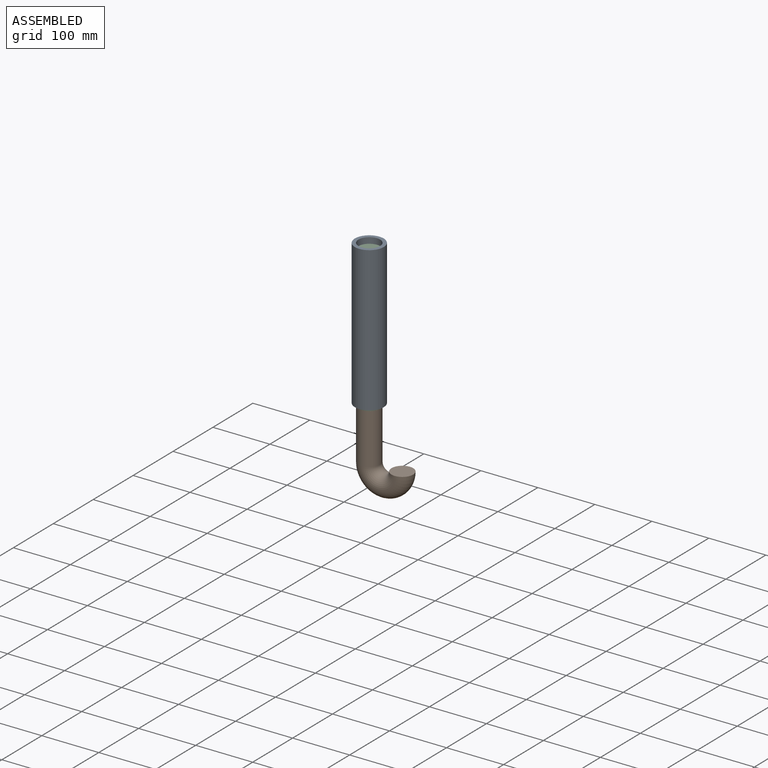
[diagram: assembled view]
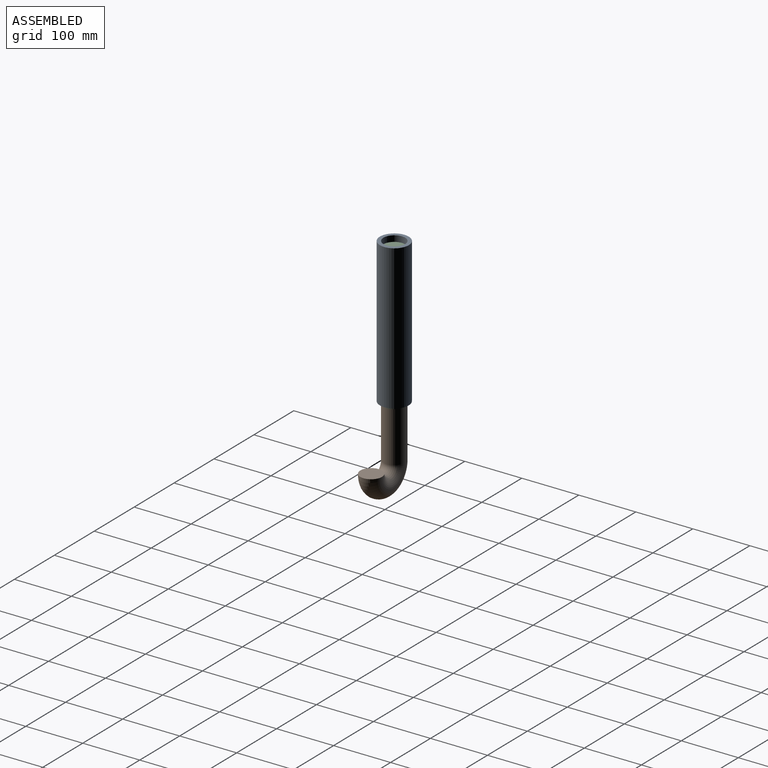
[diagram: assembled view, second angle]
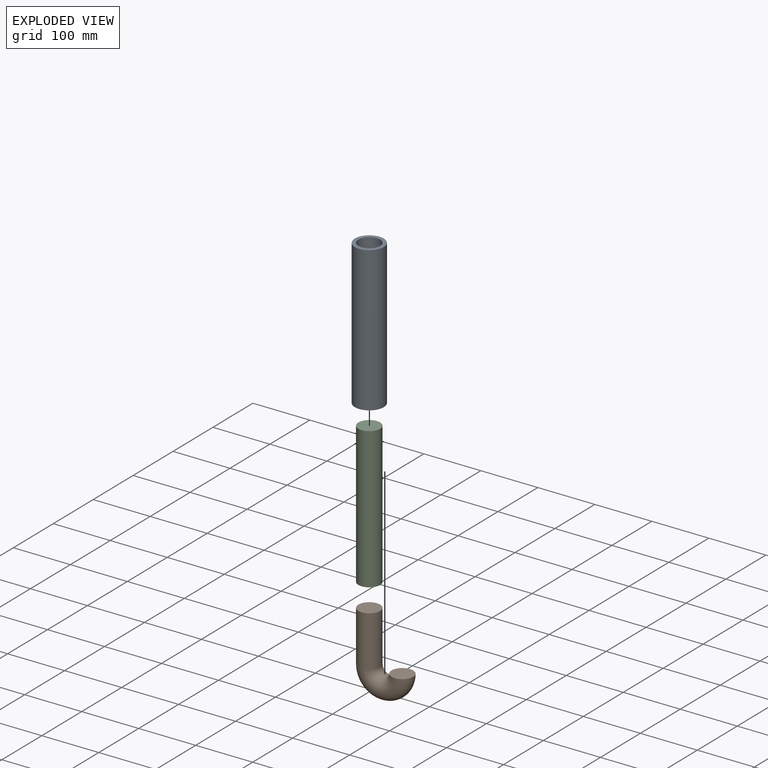
[diagram: exploded view]
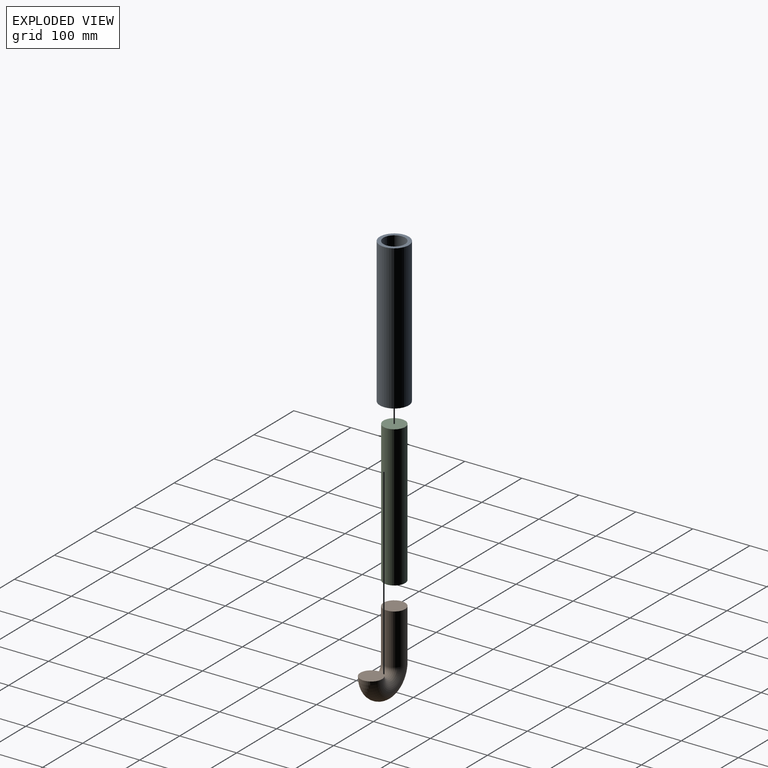
[diagram: exploded view, second angle]
ASSEMBLY  parts=3 mates=2
PART A: 5 faces, bbox 50.8x50.8x254 mm
  f0: cylinder r=25.4mm len=254mm, axis (0,0,-1), area 40536.6mm2, adj f1,f2
  f1: plane 50.8x50.8mm, normal (0,0,1), area 886.7mm2, adj f0,f3
  f2: plane 50.8x50.8mm, normal (0,0,-1), area 2026.8mm2, adj f0
  f3: cylinder r=19.05mm len=247.65mm, axis (0,0,1), area 29642.4mm2, adj f1,f4
  f4: plane 38.1x38.1mm, normal (0,0,1), area 1140.1mm2, adj f3
PART B: 4 faces, bbox 38.1x104x140.9 mm
  f0: cylinder r=19.05mm len=88.9mm, axis (0,0,-1), area 10640.9mm2, adj f1,f3
  f1: plane 38.1x38.1mm, normal (0,0,1), area 1140.1mm2, adj f0
  f2: plane 38.1x38.1mm, normal (0,0,1), area 1140.1mm2, adj f3
  f3: torus R=29.01mm, axis (1,0,0), area 10907.3mm2, adj f0,f2
PART C: 3 faces, bbox 38.1x38.1x247.7 mm
  f0: cylinder r=19.05mm len=247.65mm, axis (0,0,-1), area 29642.4mm2, adj f1,f2
  f1: plane 38.1x38.1mm, normal (0,0,1), area 1140.1mm2, adj f0
  f2: plane 38.1x38.1mm, normal (0,0,-1), area 1140.1mm2, adj f0
PLACE A t=(-31.87,53.42,0)mm fixed
PLACE B rot(axis=(0,0,1),90deg) t=(-132.34,75,-92.99)mm
PLACE C rot(axis=(1,0,0),180deg) t=(-122.89,96.29,243.56)mm
MATE fastened C.f0 <-> B.f0  axis (0,0,-1) through (-87.95,75,-4.09)mm
MATE slider A.f0 <-> B.f0  axis (0,0,1) through (-87.95,75,6.35)mm
